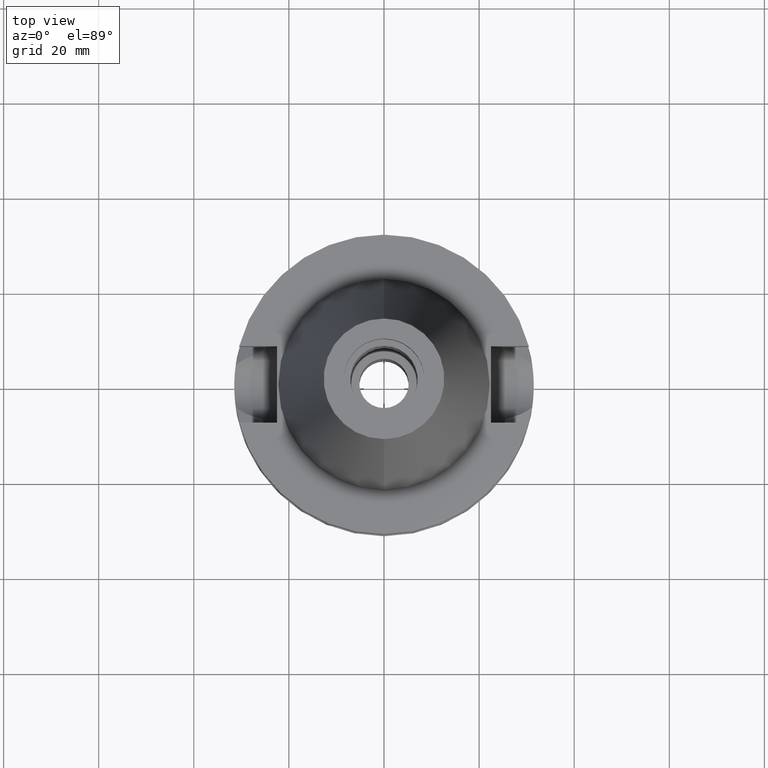
[diagram: clean part render]
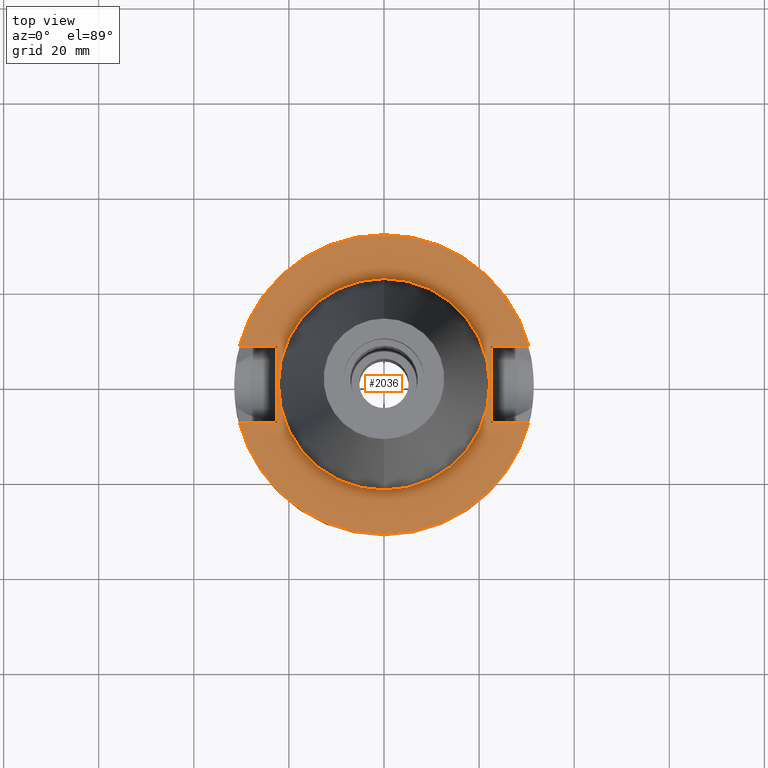
[diagram: same view with one face highlighted and labeled with its STEP entity id]
A machine part, top view. The second image highlights one B-rep face of the part: STEP entity #2036.
In plain terms, the highlighted planar face has unit normal (0, 0, -1).
Its self-contained STEP definition (entity closure, byte-faithful):
#31 = DIRECTION ( 'NONE',  ( 0.0000000000000000000, 1.000000000000000000, 0.0000000000000000000 ) ) ;
#58 = LINE ( 'NONE', #96, #3002 ) ;
#96 = CARTESIAN_POINT ( 'NONE',  ( 22.50000000000000000, 8.050000000000000711, -2.000000000000000000 ) ) ;
#168 = VERTEX_POINT ( 'NONE', #1703 ) ;
#259 = DIRECTION ( 'NONE',  ( 0.0000000000000000000, 1.000000000000000000, 0.0000000000000000000 ) ) ;
#306 = ORIENTED_EDGE ( 'NONE', *, *, #353, .F. ) ;
#327 = EDGE_CURVE ( 'NONE', #1791, #2521, #687, .T. ) ;
#337 = CIRCLE ( 'NONE', #685, 22.22500000000000142 ) ;
#347 = CARTESIAN_POINT ( 'NONE',  ( 0.0000000000000000000, 2.098064896298999980E-14, -2.000000000000000000 ) ) ;
#353 = EDGE_CURVE ( 'NONE', #1859, #168, #2079, .T. ) ;
#366 = CARTESIAN_POINT ( 'NONE',  ( 0.0000000000000000000, 1.200153863163999924E-14, -2.000000000000000000 ) ) ;
#367 = DIRECTION ( 'NONE',  ( 0.0000000000000000000, 0.0000000000000000000, 1.000000000000000000 ) ) ;
#539 = EDGE_CURVE ( 'NONE', #841, #1578, #337, .T. ) ;
#573 = CIRCLE ( 'NONE', #1098, 22.22500000000000142 ) ;
#589 = CARTESIAN_POINT ( 'NONE',  ( 22.50000000000000000, 8.050000000000000711, -2.000000000000000000 ) ) ;
#632 = AXIS2_PLACEMENT_3D ( 'NONE', #366, #2806, #855 ) ;
#685 = AXIS2_PLACEMENT_3D ( 'NONE', #1636, #2110, #259 ) ;
#687 = LINE ( 'NONE', #1540, #2621 ) ;
#734 = VECTOR ( 'NONE', #2881, 1000.000000000000000 ) ;
#797 = EDGE_CURVE ( 'NONE', #168, #2552, #1035, .T. ) ;
#801 = DIRECTION ( 'NONE',  ( -1.000000000000000000, -3.550916904668000126E-14, 0.0000000000000000000 ) ) ;
#841 = VERTEX_POINT ( 'NONE', #971 ) ;
#855 = DIRECTION ( 'NONE',  ( 0.0000000000000000000, -1.000000000000000000, 0.0000000000000000000 ) ) ;
#879 = FACE_BOUND ( 'NONE', #3211, .T. ) ;
#971 = CARTESIAN_POINT ( 'NONE',  ( 0.0000000000000000000, 22.22500000000000142, -2.000000000000000000 ) ) ;
#996 = DIRECTION ( 'NONE',  ( 0.0000000000000000000, 1.000000000000000000, 0.0000000000000000000 ) ) ;
#1003 = ORIENTED_EDGE ( 'NONE', *, *, #327, .F. ) ;
#1021 = CARTESIAN_POINT ( 'NONE',  ( 30.45402272279000044, 8.050000000000000711, -2.000000000000000000 ) ) ;
#1035 = CIRCLE ( 'NONE', #2221, 31.50000000000000000 ) ;
#1098 = AXIS2_PLACEMENT_3D ( 'NONE', #347, #367, #1216 ) ;
#1175 = EDGE_CURVE ( 'NONE', #1578, #841, #573, .T. ) ;
#1177 = DIRECTION ( 'NONE',  ( 0.0000000000000000000, 0.0000000000000000000, -1.000000000000000000 ) ) ;
#1216 = DIRECTION ( 'NONE',  ( 0.0000000000000000000, -1.000000000000000000, 0.0000000000000000000 ) ) ;
#1266 = DIRECTION ( 'NONE',  ( -1.000000000000000000, 3.550916904668000126E-14, 0.0000000000000000000 ) ) ;
#1325 = CARTESIAN_POINT ( 'NONE',  ( -22.50000000000000000, -8.050000000000000711, -2.000000000000000000 ) ) ;
#1384 = DIRECTION ( 'NONE',  ( 0.0000000000000000000, -1.000000000000000000, 0.0000000000000000000 ) ) ;
#1435 = AXIS2_PLACEMENT_3D ( 'NONE', #1956, #2790, #31 ) ;
#1439 = CARTESIAN_POINT ( 'NONE',  ( -22.50000000000000000, -8.050000000000000711, -2.000000000000000000 ) ) ;
#1491 = VECTOR ( 'NONE', #1266, 1000.000000000000000 ) ;
#1510 = CARTESIAN_POINT ( 'NONE',  ( -22.50000000000000000, 8.050000000000000711, -2.000000000000000000 ) ) ;
#1534 = VERTEX_POINT ( 'NONE', #3035 ) ;
#1540 = CARTESIAN_POINT ( 'NONE',  ( -22.50000000000000000, -8.050000000000000711, -2.000000000000000000 ) ) ;
#1551 = EDGE_CURVE ( 'NONE', #2521, #1534, #2142, .T. ) ;
#1564 = ORIENTED_EDGE ( 'NONE', *, *, #1551, .F. ) ;
#1578 = VERTEX_POINT ( 'NONE', #2461 ) ;
#1630 = EDGE_LOOP ( 'NONE', ( #3159, #2565, #306, #2052, #3338, #3124, #1564, #1003 ) ) ;
#1636 = CARTESIAN_POINT ( 'NONE',  ( 0.0000000000000000000, 2.098064896298999980E-14, -2.000000000000000000 ) ) ;
#1670 = CARTESIAN_POINT ( 'NONE',  ( 0.0000000000000000000, 2.098064896298999980E-14, -2.000000000000000000 ) ) ;
#1703 = CARTESIAN_POINT ( 'NONE',  ( 30.45402272279000044, -8.050000000000000711, -2.000000000000000000 ) ) ;
#1707 = FACE_OUTER_BOUND ( 'NONE', #1630, .T. ) ;
#1740 = DIRECTION ( 'NONE',  ( 1.000000000000000000, -3.506251283225999947E-14, 0.0000000000000000000 ) ) ;
#1773 = CARTESIAN_POINT ( 'NONE',  ( 22.50000000000000000, -8.050000000000000711, -2.000000000000000000 ) ) ;
#1791 = VERTEX_POINT ( 'NONE', #1439 ) ;
#1859 = VERTEX_POINT ( 'NONE', #2786 ) ;
#1881 = EDGE_CURVE ( 'NONE', #2087, #1859, #2600, .T. ) ;
#1956 = CARTESIAN_POINT ( 'NONE',  ( 0.0000000000000000000, 2.098064896298999980E-14, -2.000000000000000000 ) ) ;
#1970 = CARTESIAN_POINT ( 'NONE',  ( -30.45402272279000044, -8.050000000000000711, -2.000000000000000000 ) ) ;
#1993 = ORIENTED_EDGE ( 'NONE', *, *, #1175, .F. ) ;
#2036 = ADVANCED_FACE ( 'NONE', ( #1707, #879 ), #3094, .F. ) ;
#2052 = ORIENTED_EDGE ( 'NONE', *, *, #1881, .F. ) ;
#2079 = LINE ( 'NONE', #1773, #734 ) ;
#2087 = VERTEX_POINT ( 'NONE', #589 ) ;
#2093 = DIRECTION ( 'NONE',  ( 0.0000000000000000000, -1.000000000000000000, 0.0000000000000000000 ) ) ;
#2110 = DIRECTION ( 'NONE',  ( 0.0000000000000000000, 0.0000000000000000000, 1.000000000000000000 ) ) ;
#2142 = LINE ( 'NONE', #3263, #2572 ) ;
#2201 = VERTEX_POINT ( 'NONE', #1021 ) ;
#2221 = AXIS2_PLACEMENT_3D ( 'NONE', #1670, #1177, #1384 ) ;
#2269 = EDGE_CURVE ( 'NONE', #1791, #2552, #2681, .T. ) ;
#2291 = CIRCLE ( 'NONE', #1435, 31.50000000000000000 ) ;
#2413 = EDGE_CURVE ( 'NONE', #1534, #2201, #2291, .T. ) ;
#2461 = CARTESIAN_POINT ( 'NONE',  ( 0.0000000000000000000, -22.22500000000000142, -2.000000000000000000 ) ) ;
#2521 = VERTEX_POINT ( 'NONE', #1510 ) ;
#2552 = VERTEX_POINT ( 'NONE', #1970 ) ;
#2565 = ORIENTED_EDGE ( 'NONE', *, *, #797, .F. ) ;
#2572 = VECTOR ( 'NONE', #801, 1000.000000000000000 ) ;
#2600 = LINE ( 'NONE', #2900, #3172 ) ;
#2621 = VECTOR ( 'NONE', #996, 1000.000000000000000 ) ;
#2681 = LINE ( 'NONE', #1325, #1491 ) ;
#2786 = CARTESIAN_POINT ( 'NONE',  ( 22.50000000000000000, -8.050000000000000711, -2.000000000000000000 ) ) ;
#2790 = DIRECTION ( 'NONE',  ( 0.0000000000000000000, 0.0000000000000000000, -1.000000000000000000 ) ) ;
#2806 = DIRECTION ( 'NONE',  ( 0.0000000000000000000, 0.0000000000000000000, -1.000000000000000000 ) ) ;
#2881 = DIRECTION ( 'NONE',  ( 1.000000000000000000, 3.573249715389999860E-14, 0.0000000000000000000 ) ) ;
#2900 = CARTESIAN_POINT ( 'NONE',  ( 22.50000000000000000, 8.050000000000000711, -2.000000000000000000 ) ) ;
#2953 = EDGE_CURVE ( 'NONE', #2087, #2201, #58, .T. ) ;
#3002 = VECTOR ( 'NONE', #1740, 1000.000000000000000 ) ;
#3035 = CARTESIAN_POINT ( 'NONE',  ( -30.45402272279000044, 8.050000000000000711, -2.000000000000000000 ) ) ;
#3094 = PLANE ( 'NONE',  #632 ) ;
#3124 = ORIENTED_EDGE ( 'NONE', *, *, #2413, .F. ) ;
#3159 = ORIENTED_EDGE ( 'NONE', *, *, #2269, .T. ) ;
#3165 = ORIENTED_EDGE ( 'NONE', *, *, #539, .F. ) ;
#3172 = VECTOR ( 'NONE', #2093, 1000.000000000000000 ) ;
#3211 = EDGE_LOOP ( 'NONE', ( #3165, #1993 ) ) ;
#3263 = CARTESIAN_POINT ( 'NONE',  ( -22.50000000000000000, 8.050000000000000711, -2.000000000000000000 ) ) ;
#3338 = ORIENTED_EDGE ( 'NONE', *, *, #2953, .T. ) ;